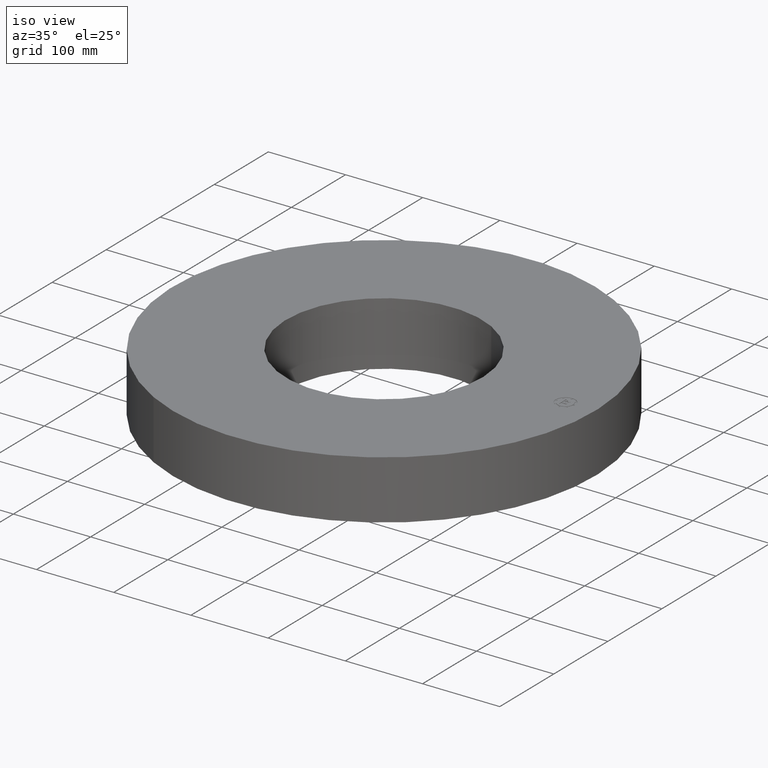
[diagram: clean part render]
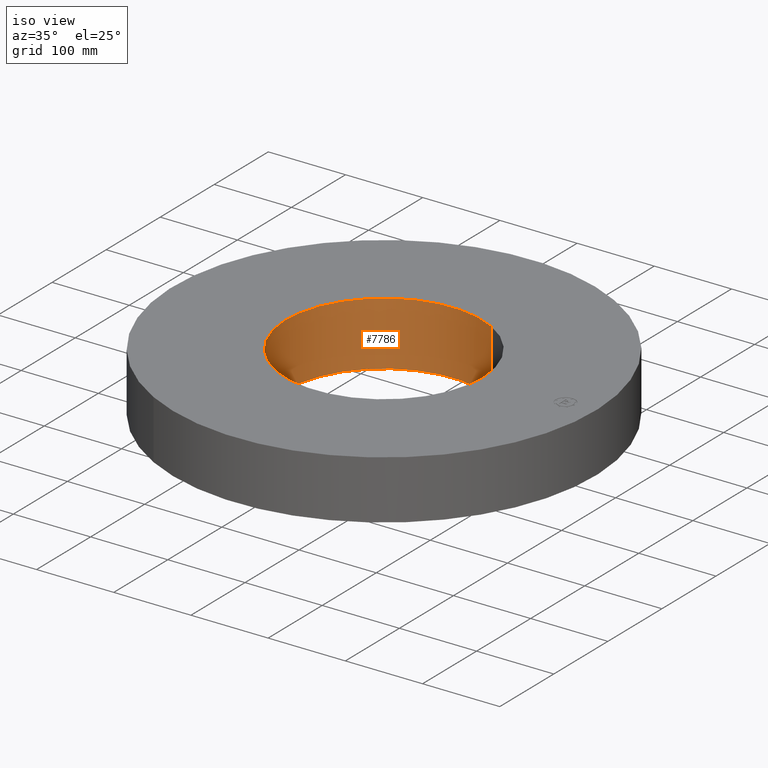
[diagram: same view with one face highlighted and labeled with its STEP entity id]
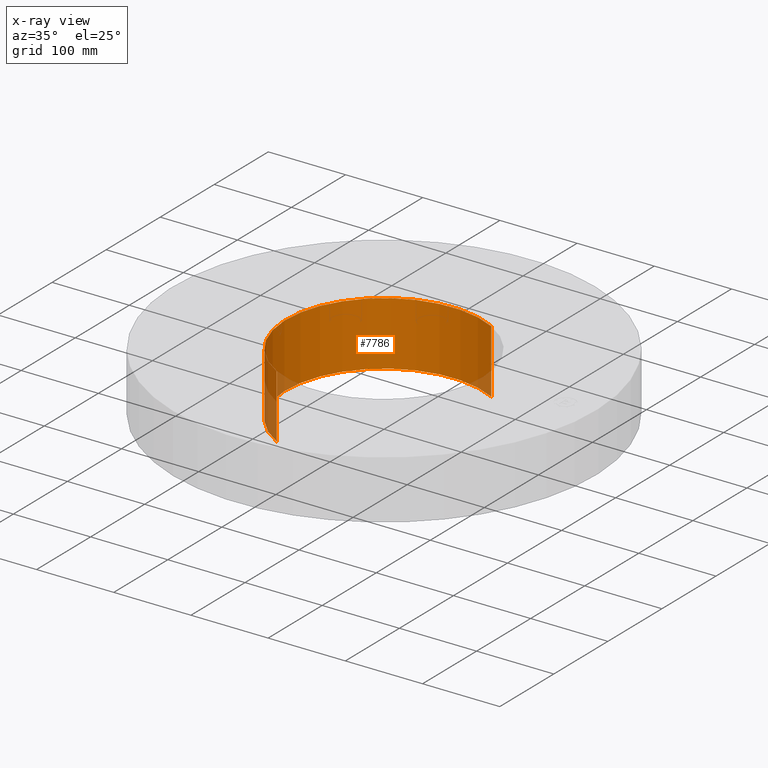
[diagram: x-ray of the same camera — body ghosted, the highlighted face saturated]
A machine part, iso view. The second image highlights one B-rep face of the part: STEP entity #7786.
The next image is the same camera in x-ray: the body ghosted, the highlighted face saturated — about 6% of this face is hidden behind the body in this view.
In plain terms, the highlighted cylindrical surface (partial cylindrical patch) has radius 127 mm, axis along (0, 0, -1).
Its self-contained STEP definition (entity closure, byte-faithful):
#7736=AXIS2_PLACEMENT_3D('Circle Axis2P3D',#7734,#7735,$) ;
#7747=AXIS2_PLACEMENT_3D('Cylinder Axis2P3D',#7744,#7745,#7746) ;
#7777=AXIS2_PLACEMENT_3D('Circle Axis2P3D',#7775,#7776,$) ;
#7729=CARTESIAN_POINT('Vertex',(2.39712769303,4.38791280947,-0.250000000001)) ;
#7731=CARTESIAN_POINT('Vertex',(-2.39712769303,-4.38791280947,-0.250000000001)) ;
#7734=CARTESIAN_POINT('Axis2P3D Location',(0.,0.,-0.250000000001)) ;
#7744=CARTESIAN_POINT('Axis2P3D Location',(0.,0.,1.37500000001)) ;
#7753=CARTESIAN_POINT('Vertex',(2.39712769303,4.38791280947,3.00000000001)) ;
#7755=CARTESIAN_POINT('Vertex',(-2.39712769303,-4.38791280947,3.00000000001)) ;
#7758=CARTESIAN_POINT('Line Origine',(2.39712769303,4.38791280947,1.37500000001)) ;
#7763=CARTESIAN_POINT('Line Origine',(-2.39712769303,-4.38791280947,1.37500000001)) ;
#7775=CARTESIAN_POINT('Axis2P3D Location',(0.,0.,3.00000000001)) ;
#7735=DIRECTION('Axis2P3D Direction',(0.,0.,-0.0393700787402)) ;
#7745=DIRECTION('Axis2P3D Direction',(0.,0.,-0.0393700787402)) ;
#7746=DIRECTION('Axis2P3D XDirection',(-0.0188750212049,-0.0345504945626,0.)) ;
#7759=DIRECTION('Vector Direction',(0.,0.,-0.0393700787402)) ;
#7764=DIRECTION('Vector Direction',(0.,0.,-0.0393700787402)) ;
#7776=DIRECTION('Axis2P3D Direction',(0.,0.,-0.0393700787402)) ;
#7760=VECTOR('Line Direction',#7759,0.0393700787402) ;
#7765=VECTOR('Line Direction',#7764,0.0393700787402) ;
#7781=ORIENTED_EDGE('',*,*,#7779,.F.) ;
#7782=ORIENTED_EDGE('',*,*,#7767,.T.) ;
#7783=ORIENTED_EDGE('',*,*,#7738,.T.) ;
#7784=ORIENTED_EDGE('',*,*,#7762,.F.) ;
#7786=ADVANCED_FACE('PartBody',(#7785),#7748,.F.) ;
#7737=CIRCLE('generated circle',#7736,5.00000000002) ;
#7778=CIRCLE('generated circle',#7777,5.00000000002) ;
#7748=CYLINDRICAL_SURFACE('generated cylinder',#7747,5.00000000002) ;
#7738=EDGE_CURVE('',#7732,#7730,#7737,.T.) ;
#7762=EDGE_CURVE('',#7754,#7730,#7761,.T.) ;
#7767=EDGE_CURVE('',#7756,#7732,#7766,.T.) ;
#7779=EDGE_CURVE('',#7756,#7754,#7778,.T.) ;
#7780=EDGE_LOOP('',(#7781,#7782,#7783,#7784)) ;
#7785=FACE_OUTER_BOUND('',#7780,.T.) ;
#7761=LINE('Line',#7758,#7760) ;
#7766=LINE('Line',#7763,#7765) ;
#7730=VERTEX_POINT('',#7729) ;
#7732=VERTEX_POINT('',#7731) ;
#7754=VERTEX_POINT('',#7753) ;
#7756=VERTEX_POINT('',#7755) ;